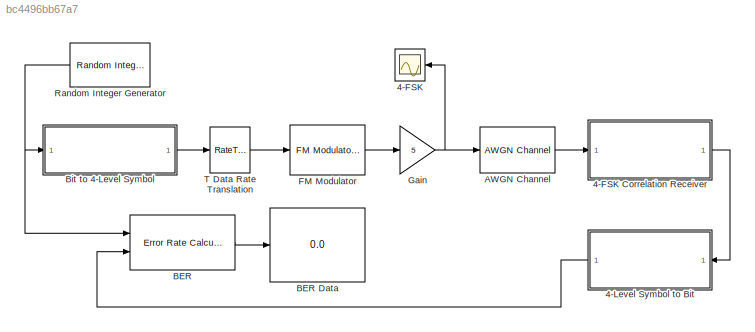
MODEL slx_bc4496bb67a7
KIND model
BLOCK [Scope] 4-FSK
  DataFormat = StructureWithTime
  Floating = off
  NumInputPorts = 1
  Ports = [1]
  SampleTime = 0
  ShowLegends = off
  TimeRange = 0.008
  YMax = 6
  YMin = -6
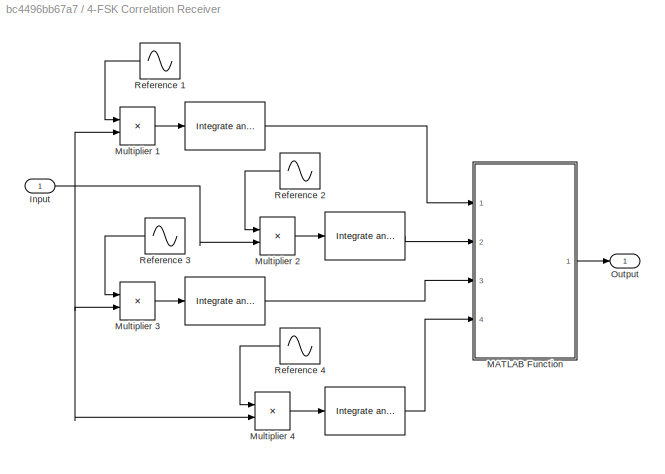
BLOCK [SubSystem] 4-FSK Correlation Receiver
  Ports = [1, 1]
  RequestExecContextInheritance = off
BLOCK [Reference] 4-FSK Correlation Receiver/   REF=commfilt2/Integrate
and Dump
  LockScale = off
  Ports = [1, 1]
  SourceBlock = commfilt2/Integrate\nand Dump
  SourceType = Integrate and Dump
  accumFracLength = 30
  accumMode = Inherit via internal rule
  accumWordLength = 32
  nodump = off
  obssamples = 1000
  offsetsamples = 0
  outputFracLength = 30
  outputMode = Same as accumulator
  outputWordLength = 32
  overflowMode = off
  roundingMode = Floor
BLOCK [Reference] 4-FSK Correlation Receiver/    REF=commfilt2/Integrate
and Dump
  LockScale = off
  Ports = [1, 1]
  SourceBlock = commfilt2/Integrate\nand Dump
  SourceType = Integrate and Dump
  accumFracLength = 30
  accumMode = Inherit via internal rule
  accumWordLength = 32
  nodump = off
  obssamples = 1000
  offsetsamples = 0
  outputFracLength = 30
  outputMode = Same as accumulator
  outputWordLength = 32
  overflowMode = off
  roundingMode = Floor
BLOCK [Reference] 4-FSK Correlation Receiver/     REF=commfilt2/Integrate
and Dump
  LockScale = off
  Ports = [1, 1]
  SourceBlock = commfilt2/Integrate\nand Dump
  SourceType = Integrate and Dump
  accumFracLength = 30
  accumMode = Inherit via internal rule
  accumWordLength = 32
  nodump = off
  obssamples = 1000
  offsetsamples = 0
  outputFracLength = 30
  outputMode = Same as accumulator
  outputWordLength = 32
  overflowMode = off
  roundingMode = Floor
BLOCK [Reference] 4-FSK Correlation Receiver/        REF=commfilt2/Integrate
and Dump
  LockScale = off
  Ports = [1, 1]
  SourceBlock = commfilt2/Integrate\nand Dump
  SourceType = Integrate and Dump
  accumFracLength = 30
  accumMode = Inherit via internal rule
  accumWordLength = 32
  nodump = off
  obssamples = 1000
  offsetsamples = 0
  outputFracLength = 30
  outputMode = Same as accumulator
  outputWordLength = 32
  overflowMode = off
  roundingMode = Floor
BLOCK [Inport] 4-FSK Correlation Receiver/Input
  IconDisplay = Port number
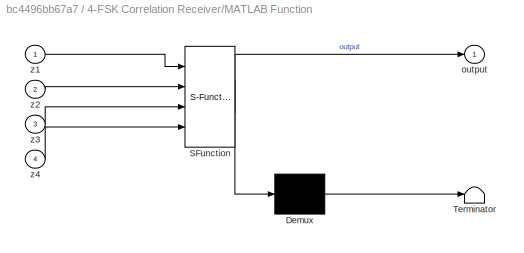
BLOCK [SubSystem] 4-FSK Correlation Receiver/MATLAB Function
  ErrorFcn = Stateflow.Translate.translate
  PermitHierarchicalResolution = ExplicitOnly
  Ports = [4, 1]
  RequestExecContextInheritance = off
  SFBlockType = MATLAB Function
  TreatAsAtomicUnit = on
BLOCK [Demux] 4-FSK Correlation Receiver/MATLAB Function/ Demux 
  Outputs = 1
  Ports = [1, 1]
BLOCK [S-Function] 4-FSK Correlation Receiver/MATLAB Function/ SFunction 
  EnableBusSupport = on
  FunctionName = sf_sfun
  PortCounts = [4 2]
  Ports = [4, 2]
  Tag = Stateflow S-Function Fig318 2
BLOCK [Terminator] 4-FSK Correlation Receiver/MATLAB Function/ Terminator 
BLOCK [Outport] 4-FSK Correlation Receiver/MATLAB Function/output
  IconDisplay = Port number
BLOCK [Inport] 4-FSK Correlation Receiver/MATLAB Function/z1
  IconDisplay = Port number
BLOCK [Inport] 4-FSK Correlation Receiver/MATLAB Function/z2
  IconDisplay = Port number
  Port = 2
BLOCK [Inport] 4-FSK Correlation Receiver/MATLAB Function/z3
  IconDisplay = Port number
  Port = 3
BLOCK [Inport] 4-FSK Correlation Receiver/MATLAB Function/z4
  IconDisplay = Port number
  Port = 4
BLOCK [Product] 4-FSK Correlation Receiver/Multiplier 1
  InputSameDT = off
  OutDataTypeStr = Inherit: Inherit via internal rule
  Ports = [2, 1]
  SaturateOnIntegerOverflow = off
BLOCK [Product] 4-FSK Correlation Receiver/Multiplier 2
  InputSameDT = off
  OutDataTypeStr = Inherit: Inherit via internal rule
  Ports = [2, 1]
  SaturateOnIntegerOverflow = off
BLOCK [Product] 4-FSK Correlation Receiver/Multiplier 3
  InputSameDT = off
  OutDataTypeStr = Inherit: Inherit via internal rule
  Ports = [2, 1]
  SaturateOnIntegerOverflow = off
BLOCK [Product] 4-FSK Correlation Receiver/Multiplier 4
  InputSameDT = off
  OutDataTypeStr = Inherit: Inherit via internal rule
  Ports = [2, 1]
  SaturateOnIntegerOverflow = off
BLOCK [Outport] 4-FSK Correlation Receiver/Output
  IconDisplay = Port number
BLOCK [Sin] 4-FSK Correlation Receiver/Reference 1
  Amplitude = 5
  Frequency = 46000*pi
  Ports = [0, 1]
  SampleTime = 2e-6
BLOCK [Sin] 4-FSK Correlation Receiver/Reference 2
  Amplitude = 5
  Frequency = 42000*pi
  Ports = [0, 1]
  SampleTime = 2e-6
BLOCK [Sin] 4-FSK Correlation Receiver/Reference 3
  Amplitude = 5
  Frequency = 38000*pi
  Ports = [0, 1]
  SampleTime = 2e-6
BLOCK [Sin] 4-FSK Correlation Receiver/Reference 4
  Amplitude = 5
  Frequency = 34000*pi
  Ports = [0, 1]
  SampleTime = 2e-6
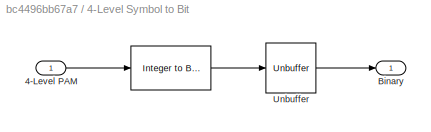
BLOCK [SubSystem] 4-Level Symbol to Bit
  Ports = [1, 1]
  RequestExecContextInheritance = off
BLOCK [Reference] 4-Level Symbol to Bit/   REF=commutil2/Integer to Bit
Converter
  Ports = [1, 1]
  SourceBlock = commutil2/Integer to Bit\nConverter
  SourceType = Integer to Bit Converter
  bitOrder = MSB first
  nbits = 2
  outDtype = Inherit via internal rule
  signedInputValues = Unsigned
BLOCK [Inport] 4-Level Symbol to Bit/4-Level PAM
  IconDisplay = Port number
BLOCK [Outport] 4-Level Symbol to Bit/Binary
  IconDisplay = Port number
BLOCK [Unbuffer] 4-Level Symbol to Bit/Unbuffer
  Ports = [1, 1]
  SampleBasedProcessing = Same as frame based
BLOCK [Reference] AWGN Channel  REF=commchan3/AWGN
Channel
  EbNodB = 50
  EsNodB = 20
  InputProcessing = Inherited (this choice will be removed - see release notes)
  Ports = [1, 1]
  Ps = 12.5
  SNRdB = 10
  SourceBlock = commchan3/AWGN\nChannel
  SourceType = AWGN Channel
  Tsym = 2e-3
  UserDataPersistent = on
  bitsPerSym = 2
  noiseMode = Signal to noise ratio  (Eb/No)
  seed = randseed
  variance = 0
BLOCK [Reference] BER  REF=commsink2/Error Rate
Calculation
  N = 8
  PMode = Port
  Ports = [2, 1]
  RsMode2 = off
  SourceBlock = commsink2/Error Rate\nCalculation
  SourceType = Error Rate Calculation
  WsName = ErrorVec
  cp_mode = Entire frame
  maxBits = 1e6
  numErr = 100
  st_delay = 0
  stop = off
  subframe = []
BLOCK [Display] BER Data
  Decimation = 1
  Format = long
  Ports = [1]
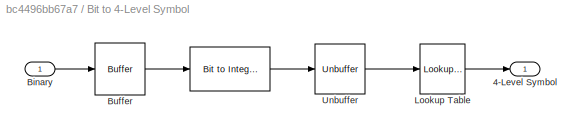
BLOCK [SubSystem] Bit to 4-Level Symbol
  Ports = [1, 1]
  RequestExecContextInheritance = off
BLOCK [Reference] Bit to 4-Level Symbol/   REF=commutil2/Bit to Integer
Converter
  Ports = [1, 1]
  SourceBlock = commutil2/Bit to Integer\nConverter
  SourceType = Bit to Integer Converter
  bitOrder = MSB first
  nbits = 2
  outDtype = Inherit via internal rule
  outDtypeSigned = Inherit via internal rule
  signedOutputValues = Unsigned
BLOCK [Outport] Bit to 4-Level Symbol/4-Level Symbol
  IconDisplay = Port number
BLOCK [Inport] Bit to 4-Level Symbol/Binary
  IconDisplay = Port number
BLOCK [Buffer] Bit to 4-Level Symbol/Buffer
  N = 2
  TreatMby1Signals = One channel
BLOCK [Lookup_n-D] Bit to 4-Level Symbol/Lookup Table
  BreakpointsForDimension1 = [0, 1, 2, 3]
  BreakpointsForDimension1DataTypeStr = double
  BreakpointsForDimension3 = [5, 7]
  IndexSearchMethod = Linear search
  InternalRulePriority = Speed
  NumberOfTableDimensions = 1
  OutDataTypeStr = double
  Ports = [1, 1]
  RndMeth = Simplest
  Table = [-3, -1, 1, 3]
  TableDataTypeStr = double
BLOCK [Unbuffer] Bit to 4-Level Symbol/Unbuffer
  Ports = [1, 1]
  SampleBasedProcessing = Same as frame based
BLOCK [Reference] FM Modulator  REF=commanapbnd3/FM
Modulator
Passband
  Fc = 20000
  Kc = 1000
  Ph = -pi/2
  Ports = [1, 1]
  SourceBlock = commanapbnd3/FM\nModulator\nPassband
  SourceType = FM Modulator Passband
BLOCK [Gain] Gain
  Gain = 5
  OutDataTypeStr = Inherit: Inherit via internal rule
  ParamDataTypeStr = Inherit: Inherit via internal rule
  SaturateOnIntegerOverflow = off
BLOCK [Reference] Random Integer Generator  REF=commrandsrc2/Random Integer
Generator
  Ports = [0, 1]
  SourceBlock = commrandsrc2/Random Integer\nGenerator
  SourceType = Random Integer Generator
  Ts = 1e-3
  frameBased = off
  mul = 2
  orient = off
  outDataType = double
  sampPerFrame = 1
  seed = 46
BLOCK [RateTransition] T Data Rate Translation
  OutPortSampleTime = 2e-6
LINE 4-FSK Correlation Receiver/      :1 -> 4-FSK Correlation Receiver/MATLAB Function:4
LINE 4-FSK Correlation Receiver/   :1 -> 4-FSK Correlation Receiver/MATLAB Function:3
LINE 4-FSK Correlation Receiver/  :1 -> 4-FSK Correlation Receiver/MATLAB Function:2
LINE 4-FSK Correlation Receiver/ :1 -> 4-FSK Correlation Receiver/MATLAB Function:1
NET 4-FSK Correlation Receiver/Input:1 -> 4-FSK Correlation Receiver/Multiplier 1:2, 4-FSK Correlation Receiver/Multiplier 2:2, 4-FSK Correlation Receiver/Multiplier 3:2, 4-FSK Correlation Receiver/Multiplier 4:2
LINE 4-FSK Correlation Receiver/MATLAB Function:1 -> 4-FSK Correlation Receiver/Output:1
LINE 4-FSK Correlation Receiver/Multiplier 1:1 -> 4-FSK Correlation Receiver/ :1
LINE 4-FSK Correlation Receiver/Multiplier 2:1 -> 4-FSK Correlation Receiver/  :1
LINE 4-FSK Correlation Receiver/Multiplier 3:1 -> 4-FSK Correlation Receiver/   :1
LINE 4-FSK Correlation Receiver/Multiplier 4:1 -> 4-FSK Correlation Receiver/      :1
LINE 4-FSK Correlation Receiver/Reference 1:1 -> 4-FSK Correlation Receiver/Multiplier 1:1
LINE 4-FSK Correlation Receiver/Reference 2:1 -> 4-FSK Correlation Receiver/Multiplier 2:1
LINE 4-FSK Correlation Receiver/Reference 3:1 -> 4-FSK Correlation Receiver/Multiplier 3:1
LINE 4-FSK Correlation Receiver/Reference 4:1 -> 4-FSK Correlation Receiver/Multiplier 4:1
LINE 4-FSK Correlation Receiver:1 -> 4-Level Symbol to Bit:1
LINE 4-Level Symbol to Bit/ :1 -> 4-Level Symbol to Bit/Unbuffer:1
LINE 4-Level Symbol to Bit/4-Level PAM:1 -> 4-Level Symbol to Bit/ :1
LINE 4-Level Symbol to Bit/Unbuffer:1 -> 4-Level Symbol to Bit/Binary:1
LINE 4-Level Symbol to Bit:1 -> BER:2
LINE AWGN Channel:1 -> 4-FSK Correlation Receiver:1
LINE BER:1 -> BER Data:1
LINE Bit to 4-Level Symbol/ :1 -> Bit to 4-Level Symbol/Unbuffer:1
LINE Bit to 4-Level Symbol/Binary:1 -> Bit to 4-Level Symbol/Buffer:1
LINE Bit to 4-Level Symbol/Buffer:1 -> Bit to 4-Level Symbol/ :1
LINE Bit to 4-Level Symbol/Lookup Table:1 -> Bit to 4-Level Symbol/4-Level Symbol:1
LINE Bit to 4-Level Symbol/Unbuffer:1 -> Bit to 4-Level Symbol/Lookup Table:1
LINE Bit to 4-Level Symbol:1 -> T Data Rate Translation:1
LINE FM Modulator:1 -> Gain:1
NET Gain:1 -> 4-FSK:1, AWGN Channel:1
NET Random Integer Generator:1 -> BER:1, Bit to 4-Level Symbol:1
LINE T Data Rate Translation:1 -> FM Modulator:1
note: NET lines group one-source signal fan-out (src -> all destinations, sorted); 1:1 wires keep LINE
CHART 4-FSK Correlation
Receiver/MATLAB Function states=1 transitions=1
  STATE_LABEL 'eML_blk_kernel()'
  STATE_LABEL 'SCRIPT:\nfunction output = fcn(z1, z2, z3, z4)\n%#codegen\noutput = -1;\nif (z1 > z2) && (z1 > z3) && (z1 > z4)\n    output = 3;     %z1 is greatest\nend\nif output < 0\n    if (z2 > z1) && (z2 > z3) && (z2 > z4)\n        output = 2; %z2 is greatest\n    end\nend\nif output < 0\n    if (z3 > z1) && (z3 > z2) && (z3 > z4)\n        output = 1; %z3 is greatest\n    end\nend\nif output < 0\n    output = 0;     %z4 is g...<+16ch>'
